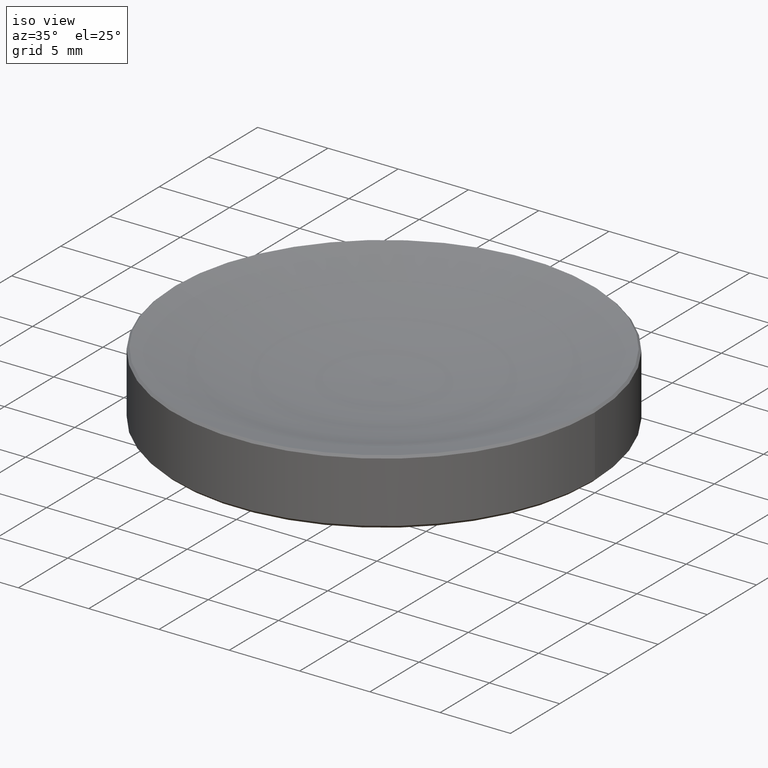
[diagram: clean part render]
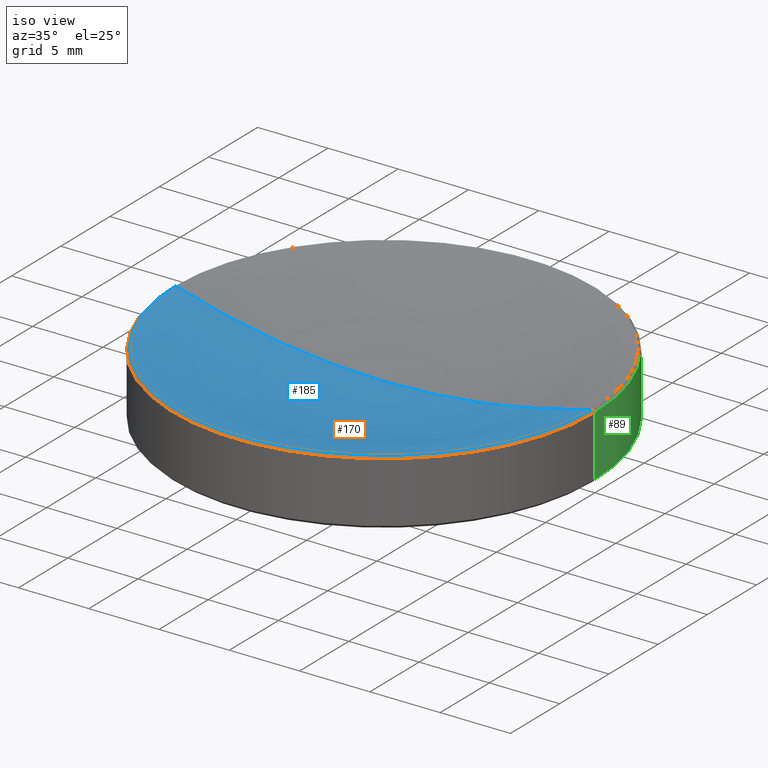
[diagram: same view with three faces highlighted in distinct colors, each labeled with its STEP entity id]
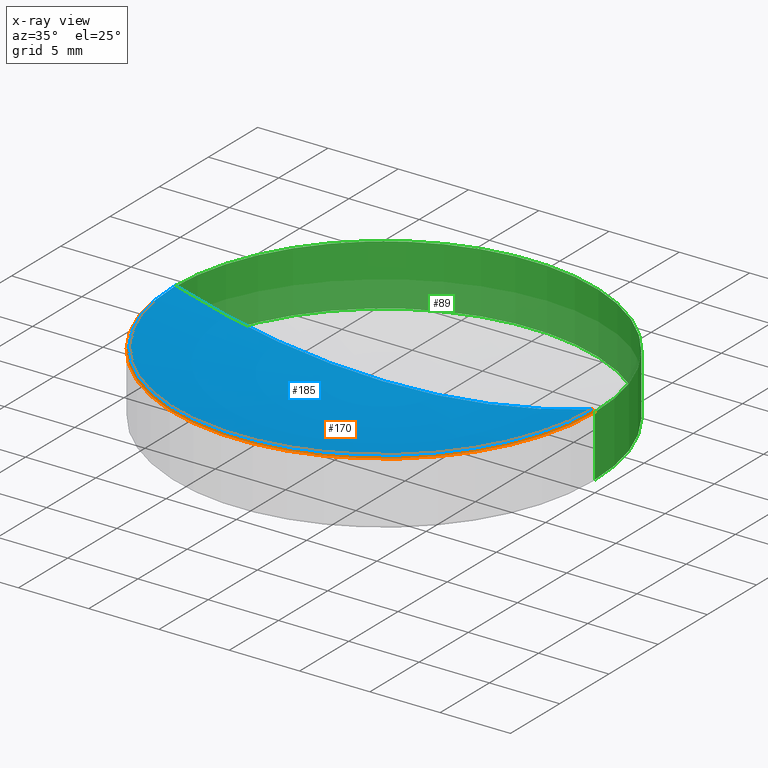
[diagram: x-ray of the same camera — body ghosted, the three highlighted faces saturated]
A machine part, iso view with three faces highlighted in distinct colors.
The next image is the same camera in x-ray (body ghosted, the three faces saturated) — at least one of them is partly hidden behind the body in this view.
Their STEP definitions:

[orange] entity #170 — the highlighted conical surface has half-angle 45 deg.
#1 = DIRECTION ( 'NONE',  ( 0.7071067811865036079, 8.659560562354395447E-17, -0.7071067811865914265 ) ) ;
#2 = CIRCLE ( 'NONE', #157, 15.00000000000000000 ) ;
#3 = FACE_OUTER_BOUND ( 'NONE', #122, .T. ) ;
#5 = AXIS2_PLACEMENT_3D ( 'NONE', #37, #16, #208 ) ;
#6 = EDGE_CURVE ( 'NONE', #165, #242, #209, .T. ) ;
#13 = AXIS2_PLACEMENT_3D ( 'NONE', #213, #68, #85 ) ;
#16 = DIRECTION ( 'NONE',  ( -0.000000000000000000, -0.000000000000000000, 1.000000000000000000 ) ) ;
#20 = CARTESIAN_POINT ( 'NONE',  ( 14.84640391126098180, 0.000000000000000000, 4.683596088739042429 ) ) ;
#30 = ORIENTED_EDGE ( 'NONE', *, *, #214, .F. ) ;
#37 = CARTESIAN_POINT ( 'NONE',  ( 0.000000000000000000, 0.000000000000000000, 4.683596088739042429 ) ) ;
#42 = VERTEX_POINT ( 'NONE', #262 ) ;
#58 = EDGE_CURVE ( 'NONE', #42, #99, #77, .T. ) ;
#59 = DIRECTION ( 'NONE',  ( -0.7071067811865036079, 0.000000000000000000, -0.7071067811865914265 ) ) ;
#64 = CARTESIAN_POINT ( 'NONE',  ( -15.00000000000000000, 1.836970198721029589E-15, 4.529999999999985150 ) ) ;
#68 = DIRECTION ( 'NONE',  ( 0.000000000000000000, 0.000000000000000000, -1.000000000000000000 ) ) ;
#69 = EDGE_CURVE ( 'NONE', #42, #165, #123, .T. ) ;
#77 = LINE ( 'NONE', #243, #133 ) ;
#85 = DIRECTION ( 'NONE',  ( -1.000000000000000000, 0.000000000000000000, 0.000000000000000000 ) ) ;
#96 = DIRECTION ( 'NONE',  ( -1.000000000000000000, 0.000000000000000000, 0.000000000000000000 ) ) ;
#99 = VERTEX_POINT ( 'NONE', #64 ) ;
#102 = ORIENTED_EDGE ( 'NONE', *, *, #6, .F. ) ;
#112 = CARTESIAN_POINT ( 'NONE',  ( 15.00000000000000000, 0.000000000000000000, 4.529999999999985150 ) ) ;
#122 = EDGE_LOOP ( 'NONE', ( #102, #145, #136, #30 ) ) ;
#123 = CIRCLE ( 'NONE', #5, 14.84640391126096759 ) ;
#133 = VECTOR ( 'NONE', #59, 1000.000000000000000 ) ;
#136 = ORIENTED_EDGE ( 'NONE', *, *, #58, .T. ) ;
#145 = ORIENTED_EDGE ( 'NONE', *, *, #69, .F. ) ;
#157 = AXIS2_PLACEMENT_3D ( 'NONE', #236, #219, #96 ) ;
#165 = VERTEX_POINT ( 'NONE', #20 ) ;
#166 = CARTESIAN_POINT ( 'NONE',  ( 14.84640391126096937, 1.818160102877448966E-15, 4.683596088739035324 ) ) ;
#170 = ADVANCED_FACE ( 'NONE', ( #3 ), #235, .T. ) ;
#208 = DIRECTION ( 'NONE',  ( 1.000000000000000000, 0.000000000000000000, 0.000000000000000000 ) ) ;
#209 = LINE ( 'NONE', #166, #255 ) ;
#213 = CARTESIAN_POINT ( 'NONE',  ( 0.000000000000000000, 0.000000000000000000, 4.683596088739035324 ) ) ;
#214 = EDGE_CURVE ( 'NONE', #242, #99, #2, .T. ) ;
#219 = DIRECTION ( 'NONE',  ( 0.000000000000000000, 0.000000000000000000, -1.000000000000000000 ) ) ;
#235 = CONICAL_SURFACE ( 'NONE', #13, 14.84640391126096937, 0.7853981633973862175 ) ;
#236 = CARTESIAN_POINT ( 'NONE',  ( 0.000000000000000000, 0.000000000000000000, 4.529999999999985150 ) ) ;
#242 = VERTEX_POINT ( 'NONE', #112 ) ;
#243 = CARTESIAN_POINT ( 'NONE',  ( -14.84640391126096937, 0.000000000000000000, 4.683596088739035324 ) ) ;
#255 = VECTOR ( 'NONE', #1, 1000.000000000000000 ) ;
#262 = CARTESIAN_POINT ( 'NONE',  ( -14.84640391126098180, 1.818160102877450543E-15, 4.683596088739042429 ) ) ;

[blue] entity #185 — the highlighted toroidal blend (fillet) surface has major radius 0.0114 mm and minor (blend) radius 51.64 mm.
#5 = AXIS2_PLACEMENT_3D ( 'NONE', #37, #16, #208 ) ;
#16 = DIRECTION ( 'NONE',  ( -0.000000000000000000, -0.000000000000000000, 1.000000000000000000 ) ) ;
#20 = CARTESIAN_POINT ( 'NONE',  ( 14.84640391126098180, 0.000000000000000000, 4.683596088739042429 ) ) ;
#22 = DIRECTION ( 'NONE',  ( 0.000000000000000000, -1.000000000000000000, 0.000000000000000000 ) ) ;
#37 = CARTESIAN_POINT ( 'NONE',  ( 0.000000000000000000, 0.000000000000000000, 4.683596088739042429 ) ) ;
#42 = VERTEX_POINT ( 'NONE', #262 ) ;
#45 = CARTESIAN_POINT ( 'NONE',  ( 0.01138314681477931023, -1.394033431094387055E-18, 54.13999874539084800 ) ) ;
#47 = CIRCLE ( 'NONE', #232, 51.64000000000000057 ) ;
#48 = AXIS2_PLACEMENT_3D ( 'NONE', #52, #138, #51 ) ;
#51 = DIRECTION ( 'NONE',  ( 1.000000000000000000, 0.000000000000000000, 0.000000000000000000 ) ) ;
#52 = CARTESIAN_POINT ( 'NONE',  ( 0.000000000000000000, 0.000000000000000000, 54.13999874539084800 ) ) ;
#67 = DIRECTION ( 'NONE',  ( -1.000000000000000000, 1.224646799147353207E-16, 0.000000000000000000 ) ) ;
#69 = EDGE_CURVE ( 'NONE', #42, #165, #123, .T. ) ;
#105 = EDGE_CURVE ( 'NONE', #139, #42, #47, .T. ) ;
#120 = ORIENTED_EDGE ( 'NONE', *, *, #105, .T. ) ;
#121 = ORIENTED_EDGE ( 'NONE', *, *, #69, .T. ) ;
#123 = CIRCLE ( 'NONE', #5, 14.84640391126096759 ) ;
#138 = DIRECTION ( 'NONE',  ( -0.000000000000000000, -0.000000000000000000, 1.000000000000000000 ) ) ;
#139 = VERTEX_POINT ( 'NONE', #150 ) ;
#149 = EDGE_CURVE ( 'NONE', #139, #165, #225, .T. ) ;
#150 = CARTESIAN_POINT ( 'NONE',  ( 0.000000000000000000, 0.000000000000000000, 2.500000000000000000 ) ) ;
#153 = CARTESIAN_POINT ( 'NONE',  ( -0.01138314681477931023, 0.000000000000000000, 54.13999874539084800 ) ) ;
#162 = TOROIDAL_SURFACE ( 'NONE', #48, -0.01138314681477931023, 51.64000000000000057 ) ;
#165 = VERTEX_POINT ( 'NONE', #20 ) ;
#182 = AXIS2_PLACEMENT_3D ( 'NONE', #153, #22, #195 ) ;
#183 = EDGE_LOOP ( 'NONE', ( #266, #120, #121 ) ) ;
#185 = ADVANCED_FACE ( 'NONE', ( #231 ), #162, .F. ) ;
#195 = DIRECTION ( 'NONE',  ( 0.000000000000000000, 0.000000000000000000, -1.000000000000000000 ) ) ;
#208 = DIRECTION ( 'NONE',  ( 1.000000000000000000, 0.000000000000000000, 0.000000000000000000 ) ) ;
#225 = CIRCLE ( 'NONE', #182, 51.64000000000000057 ) ;
#229 = DIRECTION ( 'NONE',  ( 1.224646799147353207E-16, 1.000000000000000000, 0.000000000000000000 ) ) ;
#231 = FACE_OUTER_BOUND ( 'NONE', #183, .T. ) ;
#232 = AXIS2_PLACEMENT_3D ( 'NONE', #45, #229, #67 ) ;
#262 = CARTESIAN_POINT ( 'NONE',  ( -14.84640391126098180, 1.818160102877450543E-15, 4.683596088739042429 ) ) ;
#266 = ORIENTED_EDGE ( 'NONE', *, *, #149, .F. ) ;

[green] entity #89 — the highlighted cylindrical surface (partial cylindrical patch) has radius 15 mm, axis along (-0, -0, 1).
#24 = DIRECTION ( 'NONE',  ( -1.000000000000000000, 0.000000000000000000, 0.000000000000000000 ) ) ;
#43 = DIRECTION ( 'NONE',  ( -0.000000000000000000, -0.000000000000000000, 1.000000000000000000 ) ) ;
#44 = CARTESIAN_POINT ( 'NONE',  ( 0.000000000000000000, 0.000000000000000000, 4.529999999999985150 ) ) ;
#63 = AXIS2_PLACEMENT_3D ( 'NONE', #44, #154, #24 ) ;
#64 = CARTESIAN_POINT ( 'NONE',  ( -15.00000000000000000, 1.836970198721029589E-15, 4.529999999999985150 ) ) ;
#71 = DIRECTION ( 'NONE',  ( -0.000000000000000000, -0.000000000000000000, 1.000000000000000000 ) ) ;
#80 = VERTEX_POINT ( 'NONE', #171 ) ;
#89 = ADVANCED_FACE ( 'NONE', ( #251 ), #110, .T. ) ;
#91 = VERTEX_POINT ( 'NONE', #249 ) ;
#93 = DIRECTION ( 'NONE',  ( 1.000000000000000000, 0.000000000000000000, 0.000000000000000000 ) ) ;
#97 = EDGE_CURVE ( 'NONE', #91, #99, #211, .T. ) ;
#99 = VERTEX_POINT ( 'NONE', #64 ) ;
#103 = ORIENTED_EDGE ( 'NONE', *, *, #205, .T. ) ;
#109 = DIRECTION ( 'NONE',  ( 1.000000000000000000, 0.000000000000000000, 0.000000000000000000 ) ) ;
#110 = CYLINDRICAL_SURFACE ( 'NONE', #202, 15.00000000000000000 ) ;
#112 = CARTESIAN_POINT ( 'NONE',  ( 15.00000000000000000, 0.000000000000000000, 4.529999999999985150 ) ) ;
#118 = AXIS2_PLACEMENT_3D ( 'NONE', #220, #71, #93 ) ;
#126 = VECTOR ( 'NONE', #160, 1000.000000000000000 ) ;
#127 = CARTESIAN_POINT ( 'NONE',  ( 0.000000000000000000, 0.000000000000000000, 2.500000000000000000 ) ) ;
#131 = CARTESIAN_POINT ( 'NONE',  ( 15.00000000000000000, 0.000000000000000000, 2.500000000000000000 ) ) ;
#132 = VECTOR ( 'NONE', #152, 1000.000000000000000 ) ;
#137 = EDGE_CURVE ( 'NONE', #99, #242, #194, .T. ) ;
#141 = LINE ( 'NONE', #131, #126 ) ;
#148 = EDGE_LOOP ( 'NONE', ( #103, #224, #265, #206 ) ) ;
#152 = DIRECTION ( 'NONE',  ( -0.000000000000000000, -0.000000000000000000, 1.000000000000000000 ) ) ;
#154 = DIRECTION ( 'NONE',  ( 0.000000000000000000, 0.000000000000000000, -1.000000000000000000 ) ) ;
#160 = DIRECTION ( 'NONE',  ( -0.000000000000000000, -0.000000000000000000, 1.000000000000000000 ) ) ;
#171 = CARTESIAN_POINT ( 'NONE',  ( 15.00000000000000000, 0.000000000000000000, 0.1999999999999996503 ) ) ;
#193 = CARTESIAN_POINT ( 'NONE',  ( -15.00000000000000000, 1.836970198721029589E-15, 2.500000000000000000 ) ) ;
#194 = CIRCLE ( 'NONE', #63, 15.00000000000000000 ) ;
#202 = AXIS2_PLACEMENT_3D ( 'NONE', #127, #43, #109 ) ;
#204 = CIRCLE ( 'NONE', #118, 15.00000000000000000 ) ;
#205 = EDGE_CURVE ( 'NONE', #80, #91, #204, .T. ) ;
#206 = ORIENTED_EDGE ( 'NONE', *, *, #256, .F. ) ;
#211 = LINE ( 'NONE', #193, #132 ) ;
#220 = CARTESIAN_POINT ( 'NONE',  ( 0.000000000000000000, 0.000000000000000000, 0.1999999999999996503 ) ) ;
#224 = ORIENTED_EDGE ( 'NONE', *, *, #97, .T. ) ;
#242 = VERTEX_POINT ( 'NONE', #112 ) ;
#249 = CARTESIAN_POINT ( 'NONE',  ( -15.00000000000000000, 1.836970198721029589E-15, 0.1999999999999996503 ) ) ;
#251 = FACE_OUTER_BOUND ( 'NONE', #148, .T. ) ;
#256 = EDGE_CURVE ( 'NONE', #80, #242, #141, .T. ) ;
#265 = ORIENTED_EDGE ( 'NONE', *, *, #137, .T. ) ;